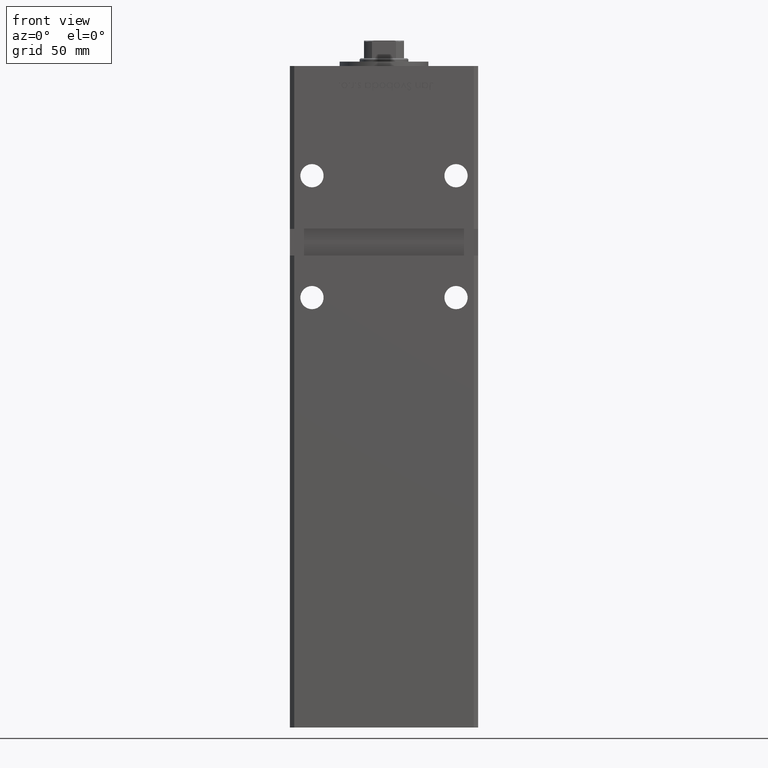
[diagram: clean part render]
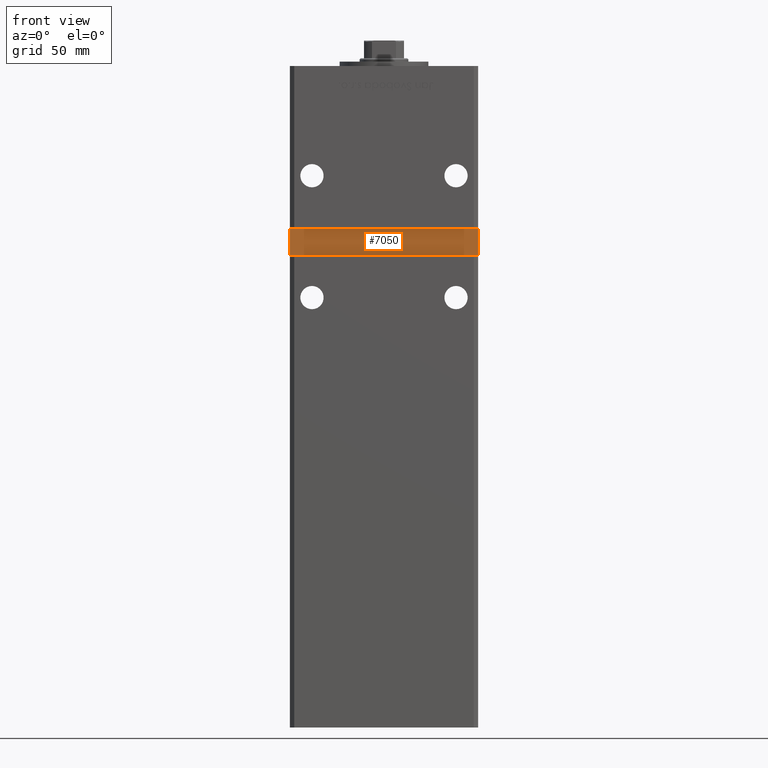
[diagram: same view with one face highlighted and labeled with its STEP entity id]
A machine part, front view. The second image highlights one B-rep face of the part: STEP entity #7050.
In plain terms, the highlighted planar face has unit normal (0, -1, 0).
Its self-contained STEP definition (entity closure, byte-faithful):
#358 = CARTESIAN_POINT ( 'NONE',  ( -42.49999999999998579, -32.50000000000000711, 198.0000000000000000 ) ) ;
#417 = DIRECTION ( 'NONE',  ( 0.000000000000000000, -1.000000000000000000, 0.000000000000000000 ) ) ;
#441 = VECTOR ( 'NONE', #38946, 1000.000000000000000 ) ;
#1875 = ORIENTED_EDGE ( 'NONE', *, *, #30936, .T. ) ;
#3153 = CARTESIAN_POINT ( 'NONE',  ( 42.49999999999998579, -32.50000000000000711, 210.0000000000000284 ) ) ;
#3603 = CARTESIAN_POINT ( 'NONE',  ( -42.49999999999998579, -32.50000000000000711, 210.0000000000000284 ) ) ;
#4377 = DIRECTION ( 'NONE',  ( 1.000000000000000000, 0.000000000000000000, 0.000000000000000000 ) ) ;
#7050 = ADVANCED_FACE ( 'NONE', ( #40986 ), #29440, .T. ) ;
#8885 = VERTEX_POINT ( 'NONE', #3153 ) ;
#11556 = VECTOR ( 'NONE', #53007, 1000.000000000000000 ) ;
#12437 = LINE ( 'NONE', #358, #41545 ) ;
#14833 = EDGE_LOOP ( 'NONE', ( #1875, #27942, #48665, #37304 ) ) ;
#19058 = LINE ( 'NONE', #51559, #30291 ) ;
#19764 = EDGE_CURVE ( 'NONE', #29059, #22402, #12437, .T. ) ;
#22402 = VERTEX_POINT ( 'NONE', #35974 ) ;
#25522 = EDGE_CURVE ( 'NONE', #38300, #29059, #19058, .T. ) ;
#27942 = ORIENTED_EDGE ( 'NONE', *, *, #37548, .T. ) ;
#29059 = VERTEX_POINT ( 'NONE', #36862 ) ;
#29440 = PLANE ( 'NONE',  #40444 ) ;
#29888 = DIRECTION ( 'NONE',  ( -5.782411586589351722E-16, 0.000000000000000000, -1.000000000000000000 ) ) ;
#30291 = VECTOR ( 'NONE', #29888, 1000.000000000000000 ) ;
#30936 = EDGE_CURVE ( 'NONE', #22402, #8885, #39845, .T. ) ;
#35974 = CARTESIAN_POINT ( 'NONE',  ( 42.49999999999998579, -32.50000000000000000, 198.0000000000000000 ) ) ;
#36862 = CARTESIAN_POINT ( 'NONE',  ( -42.49999999999998579, -32.50000000000000711, 198.0000000000000000 ) ) ;
#37304 = ORIENTED_EDGE ( 'NONE', *, *, #19764, .T. ) ;
#37548 = EDGE_CURVE ( 'NONE', #8885, #38300, #47270, .T. ) ;
#37744 = DIRECTION ( 'NONE',  ( 0.000000000000000000, -0.000000000000000000, -1.000000000000000000 ) ) ;
#38003 = CARTESIAN_POINT ( 'NONE',  ( 0.000000000000000000, -32.50000000000000711, 0.000000000000000000 ) ) ;
#38300 = VERTEX_POINT ( 'NONE', #3603 ) ;
#38946 = DIRECTION ( 'NONE',  ( -1.000000000000000000, -0.000000000000000000, -0.000000000000000000 ) ) ;
#39845 = LINE ( 'NONE', #48175, #11556 ) ;
#40444 = AXIS2_PLACEMENT_3D ( 'NONE', #38003, #417, #37744 ) ;
#40986 = FACE_OUTER_BOUND ( 'NONE', #14833, .T. ) ;
#41545 = VECTOR ( 'NONE', #4377, 1000.000000000000000 ) ;
#43243 = CARTESIAN_POINT ( 'NONE',  ( -42.49999999999998579, -32.50000000000000711, 210.0000000000000284 ) ) ;
#47270 = LINE ( 'NONE', #43243, #441 ) ;
#48175 = CARTESIAN_POINT ( 'NONE',  ( 42.49999999999998579, -32.50000000000000711, 210.0000000000000284 ) ) ;
#48665 = ORIENTED_EDGE ( 'NONE', *, *, #25522, .T. ) ;
#51559 = CARTESIAN_POINT ( 'NONE',  ( -42.49999999999998579, -32.50000000000000711, 210.0000000000000284 ) ) ;
#53007 = DIRECTION ( 'NONE',  ( -0.000000000000000000, -0.000000000000000000, 1.000000000000000000 ) ) ;